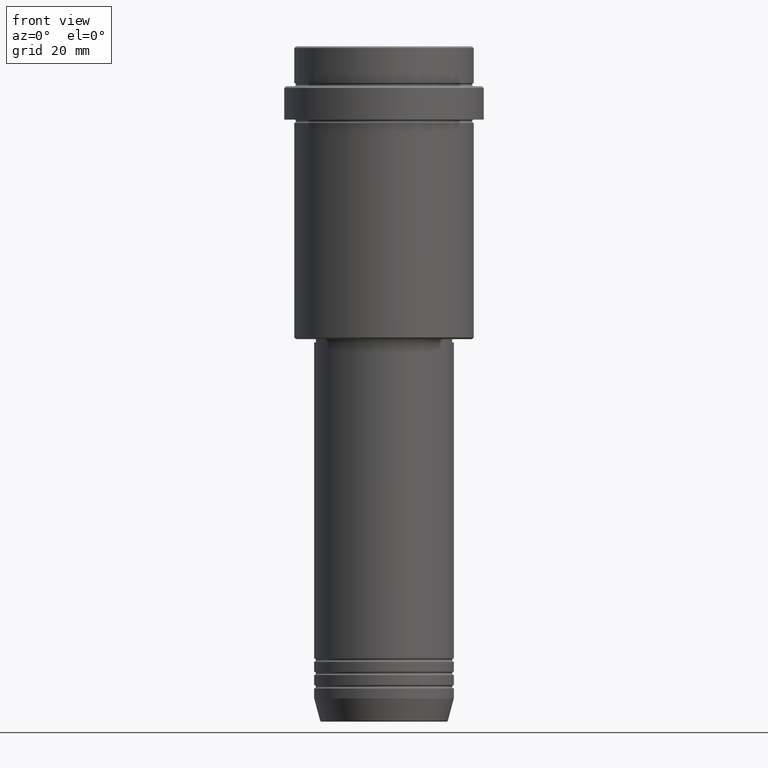
[diagram: clean part render]
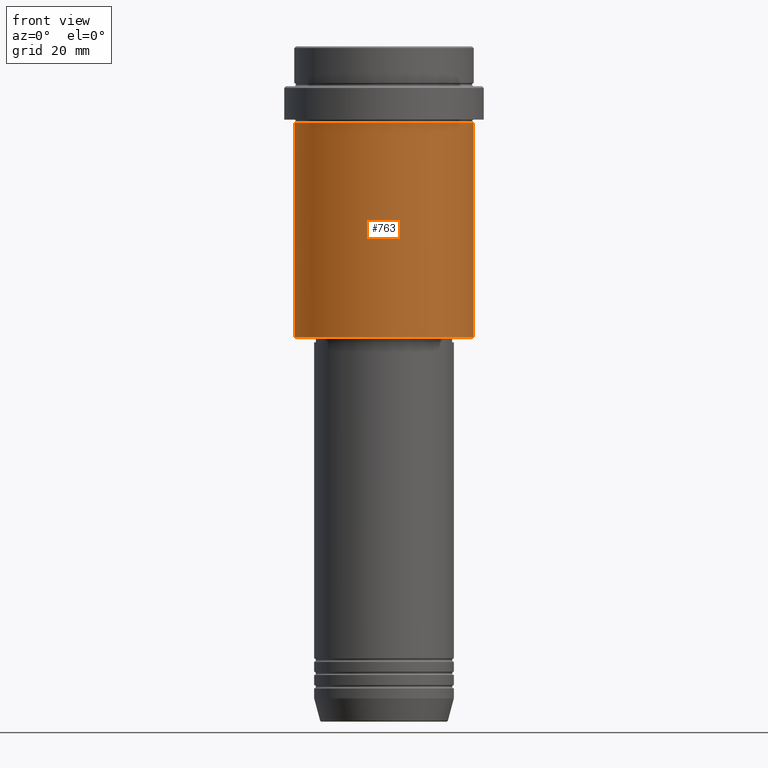
[diagram: same view with one face highlighted and labeled with its STEP entity id]
A machine part, front view. The second image highlights one B-rep face of the part: STEP entity #763.
In plain terms, the highlighted cylindrical surface (partial cylindrical patch) has radius 27 mm, axis along (-0, -0, 1).
Its self-contained STEP definition (entity closure, byte-faithful):
#137 = VERTEX_POINT ( 'NONE', #553 ) ;
#156 = LINE ( 'NONE', #1026, #900 ) ;
#173 = CARTESIAN_POINT ( 'NONE',  ( -26.99999999999999645, 3.306546357697853339E-15, 0.000000000000000000 ) ) ;
#210 = EDGE_CURVE ( 'NONE', #339, #137, #1144, .T. ) ;
#277 = DIRECTION ( 'NONE',  ( -0.000000000000000000, -0.000000000000000000, 1.000000000000000000 ) ) ;
#280 = EDGE_CURVE ( 'NONE', #339, #734, #720, .T. ) ;
#339 = VERTEX_POINT ( 'NONE', #419 ) ;
#372 = CARTESIAN_POINT ( 'NONE',  ( 0.000000000000000000, 0.000000000000000000, -87.49999999999997158 ) ) ;
#382 = DIRECTION ( 'NONE',  ( -0.000000000000000000, -0.000000000000000000, 1.000000000000000000 ) ) ;
#392 = DIRECTION ( 'NONE',  ( 1.000000000000000000, 0.000000000000000000, 0.000000000000000000 ) ) ;
#395 = ORIENTED_EDGE ( 'NONE', *, *, #919, .F. ) ;
#419 = CARTESIAN_POINT ( 'NONE',  ( -26.99999999999999645, 3.306546357697853339E-15, -87.49999999999997158 ) ) ;
#492 = AXIS2_PLACEMENT_3D ( 'NONE', #1346, #821, #392 ) ;
#544 = AXIS2_PLACEMENT_3D ( 'NONE', #372, #277, #834 ) ;
#553 = CARTESIAN_POINT ( 'NONE',  ( 26.99999999999999645, 0.000000000000000000, -87.49999999999997158 ) ) ;
#555 = EDGE_LOOP ( 'NONE', ( #1349, #1096, #1009, #395 ) ) ;
#618 = FACE_OUTER_BOUND ( 'NONE', #555, .T. ) ;
#720 = LINE ( 'NONE', #173, #1217 ) ;
#734 = VERTEX_POINT ( 'NONE', #918 ) ;
#763 = ADVANCED_FACE ( 'NONE', ( #618 ), #1375, .T. ) ;
#798 = EDGE_CURVE ( 'NONE', #137, #858, #156, .T. ) ;
#821 = DIRECTION ( 'NONE',  ( -0.000000000000000000, -0.000000000000000000, 1.000000000000000000 ) ) ;
#832 = DIRECTION ( 'NONE',  ( -0.000000000000000000, -0.000000000000000000, 1.000000000000000000 ) ) ;
#834 = DIRECTION ( 'NONE',  ( -1.000000000000000000, 0.000000000000000000, 0.000000000000000000 ) ) ;
#858 = VERTEX_POINT ( 'NONE', #1363 ) ;
#886 = CIRCLE ( 'NONE', #1059, 26.99999999999999645 ) ;
#900 = VECTOR ( 'NONE', #832, 1000.000000000000000 ) ;
#918 = CARTESIAN_POINT ( 'NONE',  ( -26.99999999999999645, 3.306546357697853339E-15, -23.00000000000000000 ) ) ;
#919 = EDGE_CURVE ( 'NONE', #734, #858, #886, .T. ) ;
#963 = CARTESIAN_POINT ( 'NONE',  ( 0.000000000000000000, 0.000000000000000000, -23.00000000000000000 ) ) ;
#1009 = ORIENTED_EDGE ( 'NONE', *, *, #798, .T. ) ;
#1026 = CARTESIAN_POINT ( 'NONE',  ( 26.99999999999999645, 0.000000000000000000, 0.000000000000000000 ) ) ;
#1059 = AXIS2_PLACEMENT_3D ( 'NONE', #963, #1403, #1415 ) ;
#1096 = ORIENTED_EDGE ( 'NONE', *, *, #210, .T. ) ;
#1144 = CIRCLE ( 'NONE', #544, 26.99999999999999645 ) ;
#1217 = VECTOR ( 'NONE', #382, 1000.000000000000000 ) ;
#1346 = CARTESIAN_POINT ( 'NONE',  ( 0.000000000000000000, 0.000000000000000000, 0.000000000000000000 ) ) ;
#1349 = ORIENTED_EDGE ( 'NONE', *, *, #280, .F. ) ;
#1363 = CARTESIAN_POINT ( 'NONE',  ( 26.99999999999999645, 0.000000000000000000, -23.00000000000000000 ) ) ;
#1375 = CYLINDRICAL_SURFACE ( 'NONE', #492, 26.99999999999999645 ) ;
#1403 = DIRECTION ( 'NONE',  ( -0.000000000000000000, -0.000000000000000000, 1.000000000000000000 ) ) ;
#1415 = DIRECTION ( 'NONE',  ( 1.000000000000000000, 0.000000000000000000, 0.000000000000000000 ) ) ;